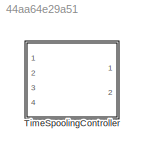
MODEL slx_44aa64e29a51
KIND library
CONFIG AbsTol = auto
CONFIG EnableMultiTasking = off
CONFIG FixedStep = auto
CONFIG MaxStep = auto
CONFIG MinStep = auto
CONFIG RelTol = 1e-3
CONFIG SampleTimeConstraint = Unconstrained
CONFIG Solver = VariableStepAuto
CONFIG SolverName = VariableStepAuto
CONFIG StartTime = 0.0
CONFIG StopTime = 10.0
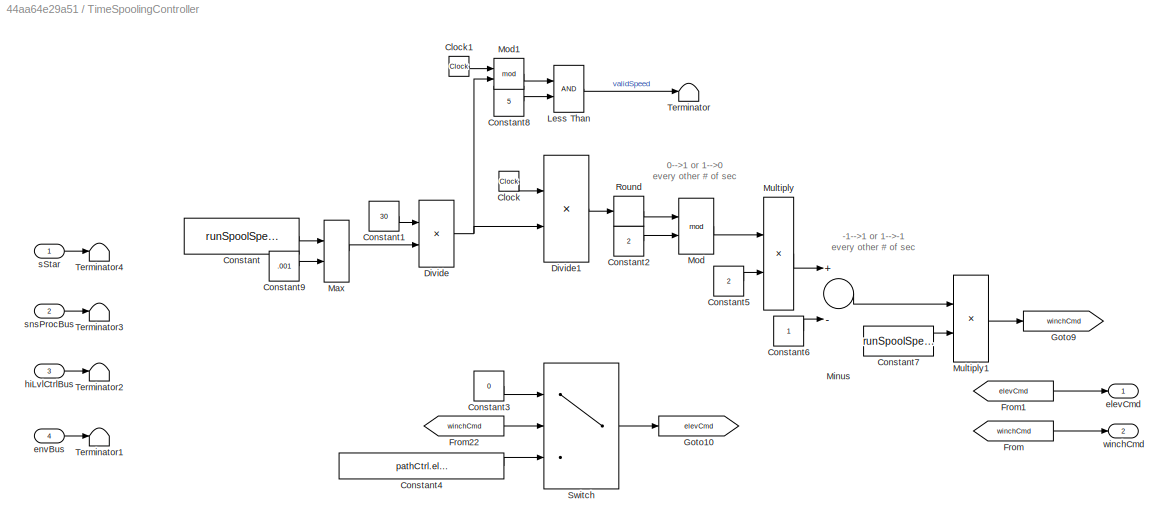
BLOCK [SubSystem] TimeSpoolingController
  Ports = [4, 2]
  RequestExecContextInheritance = off
BLOCK [Clock] TimeSpoolingController/Clock
BLOCK [Clock] TimeSpoolingController/Clock1
BLOCK [Constant] TimeSpoolingController/Constant
  Value = runSpoolSpeed
BLOCK [Constant] TimeSpoolingController/Constant1
  Value = 30
BLOCK [Constant] TimeSpoolingController/Constant2
  Value = 2
BLOCK [Constant] TimeSpoolingController/Constant3
  Value = 0
BLOCK [Constant] TimeSpoolingController/Constant4
  Value = pathCtrl.elevatorReelInDef.Value
BLOCK [Constant] TimeSpoolingController/Constant5
  Value = 2
BLOCK [Constant] TimeSpoolingController/Constant6
BLOCK [Constant] TimeSpoolingController/Constant7
  Value = runSpoolSpeed
BLOCK [Constant] TimeSpoolingController/Constant8
  Value = 5
BLOCK [Constant] TimeSpoolingController/Constant9
  Value = .001
BLOCK [Product] TimeSpoolingController/Divide
  InputSameDT = off
  Inputs = */
  OutDataTypeStr = Inherit: Inherit via internal rule
  Ports = [2, 1]
  RndMeth = Floor
  SaturateOnIntegerOverflow = off
BLOCK [Product] TimeSpoolingController/Divide1
  InputSameDT = off
  Inputs = */
  OutDataTypeStr = Inherit: Inherit via internal rule
  Ports = [2, 1]
  RndMeth = Floor
  SaturateOnIntegerOverflow = off
BLOCK [From] TimeSpoolingController/From
  GotoTag = winchCmd
BLOCK [From] TimeSpoolingController/From1
  GotoTag = elevCmd
BLOCK [From] TimeSpoolingController/From22
  GotoTag = winchCmd
BLOCK [Goto] TimeSpoolingController/Goto10
  GotoTag = elevCmd
BLOCK [Goto] TimeSpoolingController/Goto9
  GotoTag = winchCmd
BLOCK [RelationalOperator] TimeSpoolingController/Less Than
  InputSameDT = off
  OutDataTypeStr = boolean
  Ports = [2, 1]
  RndMeth = Simplest
BLOCK [MinMax] TimeSpoolingController/Max
  Function = max
  InputSameDT = off
  Inputs = 2
  Ports = [2, 1]
  SaturateOnIntegerOverflow = off
BLOCK [Sum] TimeSpoolingController/Minus
  InputSameDT = off
  Inputs = +-
  OutDataTypeStr = Inherit: Inherit via internal rule
  Ports = [2, 1]
  SaturateOnIntegerOverflow = off
BLOCK [Math] TimeSpoolingController/Mod
  Operator = mod
  Ports = [2, 1]
BLOCK [Math] TimeSpoolingController/Mod1
  Operator = mod
  Ports = [2, 1]
BLOCK [Product] TimeSpoolingController/Multiply
  InputSameDT = off
  OutDataTypeStr = Inherit: Inherit via internal rule
  Ports = [2, 1]
  RndMeth = Floor
  SaturateOnIntegerOverflow = off
BLOCK [Product] TimeSpoolingController/Multiply1
  InputSameDT = off
  OutDataTypeStr = Inherit: Inherit via internal rule
  Ports = [2, 1]
  RndMeth = Floor
  SaturateOnIntegerOverflow = off
BLOCK [Rounding] TimeSpoolingController/Round
BLOCK [Switch] TimeSpoolingController/Switch
  Criteria = u2 > Threshold
  InputSameDT = off
  SaturateOnIntegerOverflow = off
BLOCK [Terminator] TimeSpoolingController/Terminator
BLOCK [Terminator] TimeSpoolingController/Terminator1
BLOCK [Terminator] TimeSpoolingController/Terminator2
BLOCK [Terminator] TimeSpoolingController/Terminator3
BLOCK [Terminator] TimeSpoolingController/Terminator4
BLOCK [Outport] TimeSpoolingController/elevCmd
  IconDisplay = Port number
BLOCK [Inport] TimeSpoolingController/envBus
  IconDisplay = Port number
  OutDataTypeStr = Bus: envBus
  Port = 4
BLOCK [Inport] TimeSpoolingController/hiLvlCtrlBus
  IconDisplay = Port number
  OutDataTypeStr = Bus: hiLvlCtrlBus
  Port = 3
BLOCK [Inport] TimeSpoolingController/sStar 
  IconDisplay = Port number
BLOCK [Inport] TimeSpoolingController/snsProcBus
  IconDisplay = Port number
  OutDataTypeStr = Bus: sensorsProcessingBus
  Port = 2
BLOCK [Outport] TimeSpoolingController/winchCmd 
  IconDisplay = Port number
  Port = 2
ANNOTATION TimeSpoolingController: -1-->1 or 1-->-1 every other # of sec
ANNOTATION TimeSpoolingController: 0-->1 or 1-->0 every other # of sec
LINE TimeSpoolingController/Clock1:1 -> TimeSpoolingController/Mod1:1
LINE TimeSpoolingController/Clock:1 -> TimeSpoolingController/Divide1:1
LINE TimeSpoolingController/Constant1:1 -> TimeSpoolingController/Divide:1
LINE TimeSpoolingController/Constant2:1 -> TimeSpoolingController/Mod:2
LINE TimeSpoolingController/Constant3:1 -> TimeSpoolingController/Switch:1
LINE TimeSpoolingController/Constant4:1 -> TimeSpoolingController/Switch:3
LINE TimeSpoolingController/Constant5:1 -> TimeSpoolingController/Multiply:2
LINE TimeSpoolingController/Constant6:1 -> TimeSpoolingController/Minus:2
LINE TimeSpoolingController/Constant7:1 -> TimeSpoolingController/Multiply1:2
LINE TimeSpoolingController/Constant8:1 -> TimeSpoolingController/Less Than:2
LINE TimeSpoolingController/Constant9:1 -> TimeSpoolingController/Max:2
LINE TimeSpoolingController/Constant:1 -> TimeSpoolingController/Max:1
LINE TimeSpoolingController/Divide1:1 -> TimeSpoolingController/Round:1
NET TimeSpoolingController/Divide:1 -> TimeSpoolingController/Divide1:2, TimeSpoolingController/Mod1:2
LINE TimeSpoolingController/From1:1 -> TimeSpoolingController/elevCmd:1
LINE TimeSpoolingController/From22:1 -> TimeSpoolingController/Switch:2
LINE TimeSpoolingController/From:1 -> TimeSpoolingController/winchCmd :1
LINE TimeSpoolingController/Less Than:1 -> TimeSpoolingController/Terminator:1
LINE TimeSpoolingController/Max:1 -> TimeSpoolingController/Divide:2
LINE TimeSpoolingController/Minus:1 -> TimeSpoolingController/Multiply1:1
LINE TimeSpoolingController/Mod1:1 -> TimeSpoolingController/Less Than:1
LINE TimeSpoolingController/Mod:1 -> TimeSpoolingController/Multiply:1
LINE TimeSpoolingController/Multiply1:1 -> TimeSpoolingController/Goto9:1
LINE TimeSpoolingController/Multiply:1 -> TimeSpoolingController/Minus:1
LINE TimeSpoolingController/Round:1 -> TimeSpoolingController/Mod:1
LINE TimeSpoolingController/Switch:1 -> TimeSpoolingController/Goto10:1
LINE TimeSpoolingController/envBus:1 -> TimeSpoolingController/Terminator1:1
LINE TimeSpoolingController/hiLvlCtrlBus:1 -> TimeSpoolingController/Terminator2:1
LINE TimeSpoolingController/sStar :1 -> TimeSpoolingController/Terminator4:1
LINE TimeSpoolingController/snsProcBus:1 -> TimeSpoolingController/Terminator3:1
note: NET lines group one-source signal fan-out (src -> all destinations, sorted); 1:1 wires keep LINE
